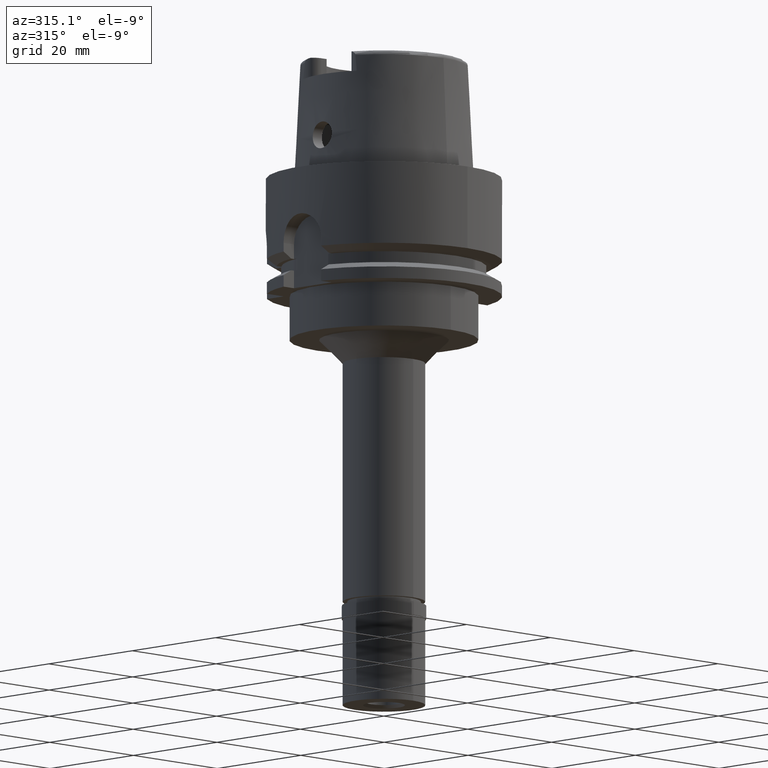
[diagram: clean part render]
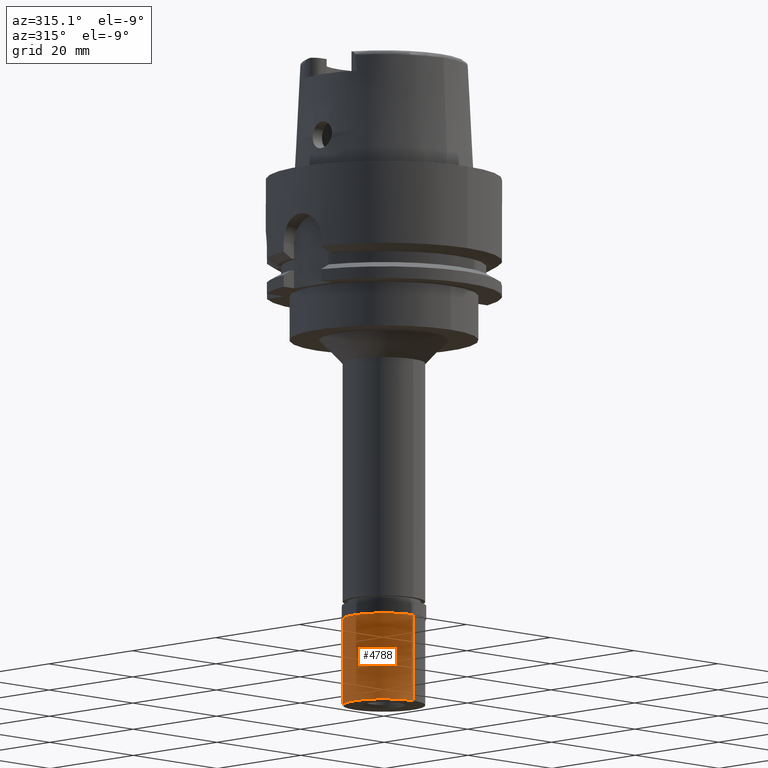
[diagram: same view with one face highlighted and labeled with its STEP entity id]
A machine part, auxiliary view. The second image highlights one B-rep face of the part: STEP entity #4788.
In plain terms, the highlighted cylindrical surface (partial cylindrical patch) has radius 7 mm, axis along (0, 0, 1).
Its self-contained STEP definition (entity closure, byte-faithful):
#376 = DIRECTION ( 'NONE',  ( 0.0000000000000000000, 0.0000000000000000000, -1.000000000000000000 ) ) ;
#855 = DIRECTION ( 'NONE',  ( 0.0000000000000000000, -1.000000000000000000, 0.0000000000000000000 ) ) ;
#999 = ORIENTED_EDGE ( 'NONE', *, *, #3301, .F. ) ;
#1145 = EDGE_CURVE ( 'NONE', #1946, #4836, #1980, .T. ) ;
#1427 = ORIENTED_EDGE ( 'NONE', *, *, #2255, .T. ) ;
#1496 = AXIS2_PLACEMENT_3D ( 'NONE', #2585, #5007, #1752 ) ;
#1539 = FACE_OUTER_BOUND ( 'NONE', #2224, .T. ) ;
#1606 = CARTESIAN_POINT ( 'NONE',  ( 0.0000000000000000000, 7.000000000000000000, -2.299999999999999822 ) ) ;
#1611 = CARTESIAN_POINT ( 'NONE',  ( 0.0000000000000000000, -7.000000000000000000, -2.299999999999999822 ) ) ;
#1752 = DIRECTION ( 'NONE',  ( 0.0000000000000000000, 1.000000000000000000, 0.0000000000000000000 ) ) ;
#1946 = VERTEX_POINT ( 'NONE', #1606 ) ;
#1980 = LINE ( 'NONE', #4938, #4790 ) ;
#2027 = AXIS2_PLACEMENT_3D ( 'NONE', #5109, #2296, #4308 ) ;
#2081 = VECTOR ( 'NONE', #376, 1000.000000000000000 ) ;
#2129 = VERTEX_POINT ( 'NONE', #4969 ) ;
#2224 = EDGE_LOOP ( 'NONE', ( #5265, #999, #1427, #3924 ) ) ;
#2255 = EDGE_CURVE ( 'NONE', #2129, #1946, #2259, .T. ) ;
#2259 = CIRCLE ( 'NONE', #2688, 7.000000000000000000 ) ;
#2296 = DIRECTION ( 'NONE',  ( 0.0000000000000000000, 0.0000000000000000000, 1.000000000000000000 ) ) ;
#2353 = CARTESIAN_POINT ( 'NONE',  ( 0.0000000000000000000, 7.000000000000000000, -17.00000000000000000 ) ) ;
#2585 = CARTESIAN_POINT ( 'NONE',  ( 0.0000000000000000000, 0.0000000000000000000, -17.00000000000000000 ) ) ;
#2617 = VERTEX_POINT ( 'NONE', #2673 ) ;
#2673 = CARTESIAN_POINT ( 'NONE',  ( 0.0000000000000000000, -7.000000000000000000, -17.00000000000000000 ) ) ;
#2688 = AXIS2_PLACEMENT_3D ( 'NONE', #5309, #4445, #855 ) ;
#3212 = DIRECTION ( 'NONE',  ( 0.0000000000000000000, 0.0000000000000000000, -1.000000000000000000 ) ) ;
#3301 = EDGE_CURVE ( 'NONE', #2129, #2617, #3659, .T. ) ;
#3659 = LINE ( 'NONE', #1611, #2081 ) ;
#3924 = ORIENTED_EDGE ( 'NONE', *, *, #1145, .T. ) ;
#3959 = CYLINDRICAL_SURFACE ( 'NONE', #2027, 7.000000000000000000 ) ;
#4291 = EDGE_CURVE ( 'NONE', #4836, #2617, #4753, .T. ) ;
#4308 = DIRECTION ( 'NONE',  ( 0.0000000000000000000, 1.000000000000000000, 0.0000000000000000000 ) ) ;
#4445 = DIRECTION ( 'NONE',  ( 0.0000000000000000000, 0.0000000000000000000, -1.000000000000000000 ) ) ;
#4753 = CIRCLE ( 'NONE', #1496, 7.000000000000000000 ) ;
#4788 = ADVANCED_FACE ( 'NONE', ( #1539 ), #3959, .T. ) ;
#4790 = VECTOR ( 'NONE', #3212, 1000.000000000000000 ) ;
#4836 = VERTEX_POINT ( 'NONE', #2353 ) ;
#4938 = CARTESIAN_POINT ( 'NONE',  ( 0.0000000000000000000, 7.000000000000000000, -2.299999999999999822 ) ) ;
#4969 = CARTESIAN_POINT ( 'NONE',  ( 0.0000000000000000000, -7.000000000000000000, -2.299999999999999822 ) ) ;
#5007 = DIRECTION ( 'NONE',  ( 0.0000000000000000000, 0.0000000000000000000, 1.000000000000000000 ) ) ;
#5109 = CARTESIAN_POINT ( 'NONE',  ( 0.0000000000000000000, 0.0000000000000000000, -17.85000000000000142 ) ) ;
#5265 = ORIENTED_EDGE ( 'NONE', *, *, #4291, .T. ) ;
#5309 = CARTESIAN_POINT ( 'NONE',  ( 0.0000000000000000000, 0.0000000000000000000, -2.299999999999999822 ) ) ;